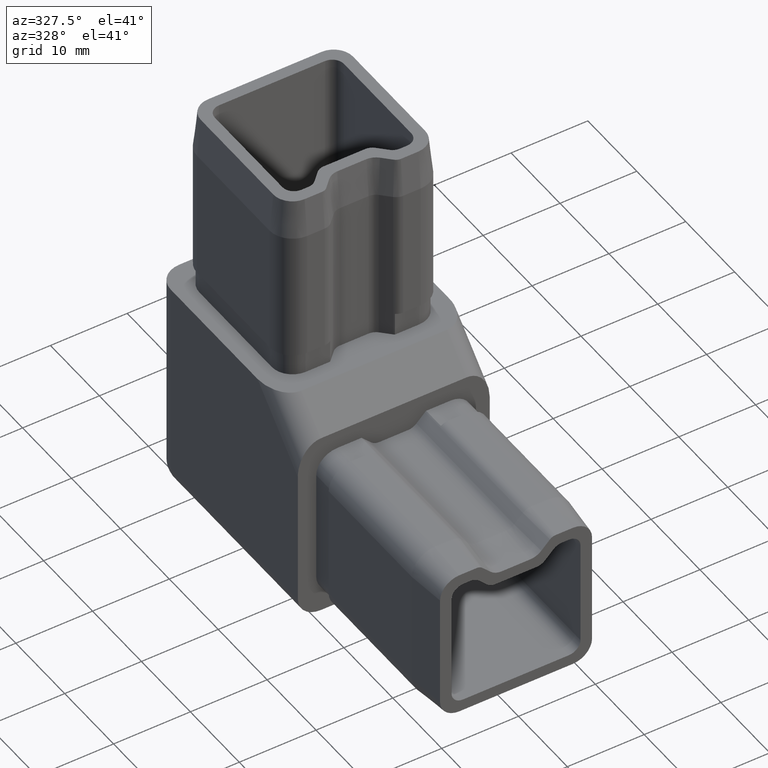
[diagram: clean part render]
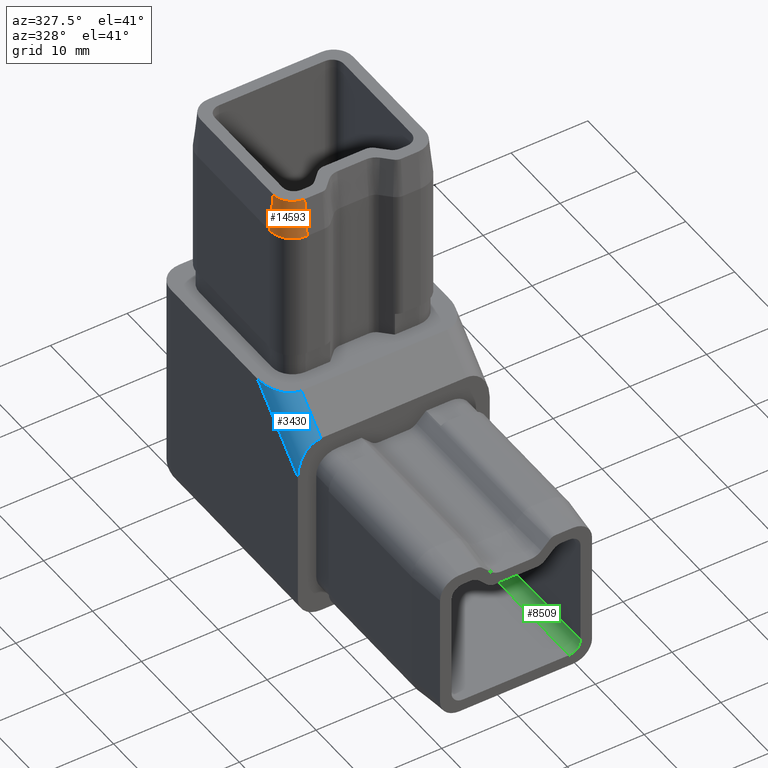
[diagram: same view with three faces highlighted in distinct colors, each labeled with its STEP entity id]
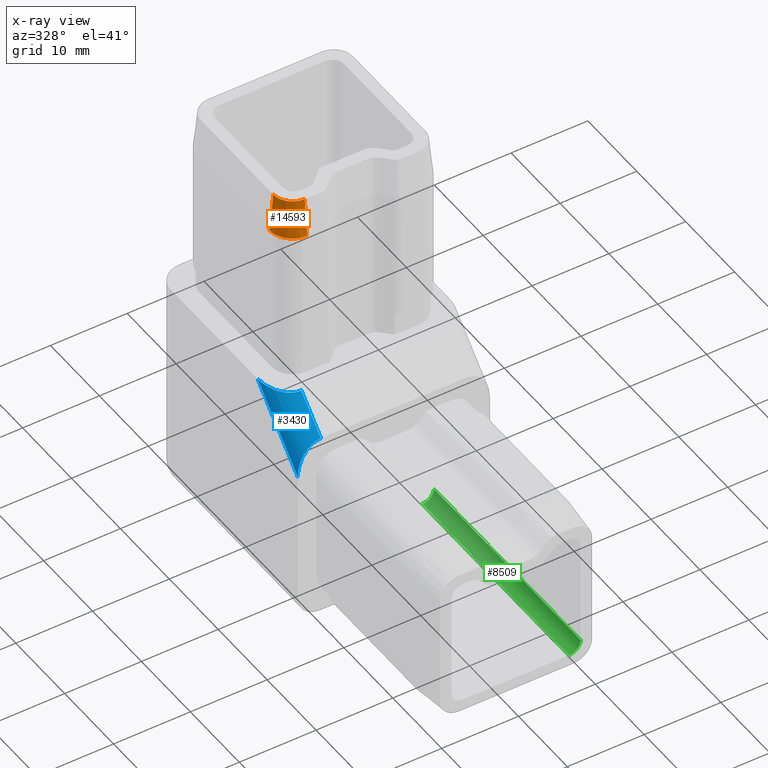
[diagram: x-ray of the same camera — body ghosted, the three highlighted faces saturated]
A machine part, auxiliary view with three faces highlighted in distinct colors.
The next image is the same camera in x-ray (body ghosted, the three faces saturated) — at least one of them is partly hidden behind the body in this view.
Their STEP definitions:

[orange] entity #14593 — the highlighted conical surface has half-angle 5.711 deg.
#24 = VERTEX_POINT ( 'NONE', #14538 ) ;
#80 = ORIENTED_EDGE ( 'NONE', *, *, #8431, .F. ) ;
#134 = ORIENTED_EDGE ( 'NONE', *, *, #9704, .T. ) ;
#420 = CARTESIAN_POINT ( 'NONE',  ( -7.399999999999999500, -7.900000000000016300, 39.50000000000000000 ) ) ;
#670 = DIRECTION ( 'NONE',  ( -1.734723475976807100E-016, -0.09950371902099938700, -0.9950371902099890400 ) ) ;
#702 = EDGE_CURVE ( 'NONE', #8308, #24, #5371, .T. ) ;
#1025 = CARTESIAN_POINT ( 'NONE',  ( -9.900000000000011000, -5.400000000000012800, 39.50000000000000000 ) ) ;
#1292 = DIRECTION ( 'NONE',  ( -1.000000000000000000, 0.0000000000000000000, 0.0000000000000000000 ) ) ;
#1793 = LINE ( 'NONE', #1025, #24279 ) ;
#2605 = ORIENTED_EDGE ( 'NONE', *, *, #702, .F. ) ;
#3595 = CARTESIAN_POINT ( 'NONE',  ( -7.399999999999999500, -7.900000000000016300, 39.50000000000000000 ) ) ;
#5371 = LINE ( 'NONE', #420, #9996 ) ;
#5805 = VERTEX_POINT ( 'NONE', #23120 ) ;
#6315 = VERTEX_POINT ( 'NONE', #21039 ) ;
#6955 = DIRECTION ( 'NONE',  ( -0.09950371902099938700, 1.452852380689753500E-016, -0.9950371902099890400 ) ) ;
#7140 = CARTESIAN_POINT ( 'NONE',  ( -7.400000000000003000, -5.400000000000007500, 39.50000000000000000 ) ) ;
#8308 = VERTEX_POINT ( 'NONE', #3595 ) ;
#8431 = EDGE_CURVE ( 'NONE', #24, #5805, #12269, .T. ) ;
#9672 = DIRECTION ( 'NONE',  ( -0.0000000000000000000, -0.0000000000000000000, -1.000000000000000000 ) ) ;
#9704 = EDGE_CURVE ( 'NONE', #6315, #5805, #1793, .T. ) ;
#9996 = VECTOR ( 'NONE', #670, 1000.000000000000200 ) ;
#12041 = ORIENTED_EDGE ( 'NONE', *, *, #18305, .T. ) ;
#12269 = CIRCLE ( 'NONE', #21026, 3.000000000000010700 ) ;
#13351 = FACE_OUTER_BOUND ( 'NONE', #24248, .T. ) ;
#13546 = CARTESIAN_POINT ( 'NONE',  ( -7.400000000000003000, -5.400000000000007500, 39.50000000000000000 ) ) ;
#14538 = CARTESIAN_POINT ( 'NONE',  ( -7.400000000000001200, -8.400000000000016300, 34.50000000000000000 ) ) ;
#14593 = ADVANCED_FACE ( 'NONE', ( #13351 ), #19526, .T. ) ;
#14611 = AXIS2_PLACEMENT_3D ( 'NONE', #13546, #9672, #15871 ) ;
#15871 = DIRECTION ( 'NONE',  ( -1.000000000000000000, 0.0000000000000000000, 0.0000000000000000000 ) ) ;
#16891 = DIRECTION ( 'NONE',  ( -0.0000000000000000000, -0.0000000000000000000, -1.000000000000000000 ) ) ;
#18305 = EDGE_CURVE ( 'NONE', #8308, #6315, #22292, .T. ) ;
#18966 = AXIS2_PLACEMENT_3D ( 'NONE', #7140, #16891, #1292 ) ;
#19526 = CONICAL_SURFACE ( 'NONE', #14611, 2.500000000000010200, 0.09966865249116216300 ) ;
#21026 = AXIS2_PLACEMENT_3D ( 'NONE', #22003, #23986, #23818 ) ;
#21039 = CARTESIAN_POINT ( 'NONE',  ( -9.900000000000011000, -5.400000000000012800, 39.50000000000000000 ) ) ;
#22003 = CARTESIAN_POINT ( 'NONE',  ( -7.400000000000003000, -5.400000000000007500, 34.50000000000000000 ) ) ;
#22292 = CIRCLE ( 'NONE', #18966, 2.500000000000010200 ) ;
#23120 = CARTESIAN_POINT ( 'NONE',  ( -10.40000000000001100, -5.400000000000011000, 34.50000000000000000 ) ) ;
#23818 = DIRECTION ( 'NONE',  ( -1.000000000000000000, 0.0000000000000000000, 0.0000000000000000000 ) ) ;
#23986 = DIRECTION ( 'NONE',  ( -0.0000000000000000000, -0.0000000000000000000, -1.000000000000000000 ) ) ;
#24248 = EDGE_LOOP ( 'NONE', ( #2605, #12041, #134, #80 ) ) ;
#24279 = VECTOR ( 'NONE', #6955, 1000.000000000000200 ) ;

[blue] entity #3430 — the highlighted cylindrical surface (edge-blend (fillet) strip) has radius 3 mm, axis along (0, -0.7071, -0.7071).
#5 =( BOUNDED_CURVE ( )  B_SPLINE_CURVE ( 3, ( #10167, #22029, #23842, #12039 ),
 .UNSPECIFIED., .F., .T. ) 
 B_SPLINE_CURVE_WITH_KNOTS ( ( 4, 4 ),
 ( 3.141592653589793600, 4.712388980384687900 ),
 .UNSPECIFIED. ) 
 CURVE ( )  GEOMETRIC_REPRESENTATION_ITEM ( )  RATIONAL_B_SPLINE_CURVE ( ( 1.000000000000000000, 0.8047378541243654900, 0.8047378541243654900, 1.000000000000000000 ) ) 
 REPRESENTATION_ITEM ( '' )  );
#1916 = VECTOR ( 'NONE', #19713, 1000.000000000000100 ) ;
#2718 = VERTEX_POINT ( 'NONE', #11256 ) ;
#2782 = EDGE_LOOP ( 'NONE', ( #24687, #17172, #18689, #17738 ) ) ;
#2841 = EDGE_CURVE ( 'NONE', #11148, #9052, #4066, .T. ) ;
#2921 = CARTESIAN_POINT ( 'NONE',  ( -9.499999999999998200, -10.50000000000002100, 14.50000000000000000 ) ) ;
#3291 =( BOUNDED_CURVE ( )  B_SPLINE_CURVE ( 3, ( #8847, #14706, #20773, #2921 ),
 .UNSPECIFIED., .F., .F. ) 
 B_SPLINE_CURVE_WITH_KNOTS ( ( 4, 4 ),
 ( 4.712388980384688800, 6.283185307179586200 ),
 .UNSPECIFIED. ) 
 CURVE ( )  GEOMETRIC_REPRESENTATION_ITEM ( )  RATIONAL_B_SPLINE_CURVE ( ( 1.000000000000000000, 0.8047378541243648300, 0.8047378541243648300, 1.000000000000000000 ) ) 
 REPRESENTATION_ITEM ( '' )  );
#3430 = ADVANCED_FACE ( 'NONE', ( #17922 ), #9897, .T. ) ;
#4066 = LINE ( 'NONE', #13747, #1916 ) ;
#4138 = EDGE_CURVE ( 'NONE', #13731, #11148, #3291, .T. ) ;
#4817 = DIRECTION ( 'NONE',  ( -8.459549885149632900E-017, 0.7071067811865461300, 0.7071067811865489100 ) ) ;
#7615 = CARTESIAN_POINT ( 'NONE',  ( -9.499999999999998200, -14.50000000000000200, 10.50000000000000400 ) ) ;
#8847 = CARTESIAN_POINT ( 'NONE',  ( -12.49999999999999800, -6.257359312880746300, 14.50000000000000000 ) ) ;
#9052 = VERTEX_POINT ( 'NONE', #7615 ) ;
#9513 = CARTESIAN_POINT ( 'NONE',  ( -12.49999999999999800, -6.257359312880746300, 14.50000000000000000 ) ) ;
#9732 = CARTESIAN_POINT ( 'NONE',  ( -9.499999999999998200, -10.50000000000002100, 14.50000000000000000 ) ) ;
#9786 = VECTOR ( 'NONE', #4817, 1000.000000000000100 ) ;
#9897 = CYLINDRICAL_SURFACE ( 'NONE', #15599, 3.000000000000000400 ) ;
#10167 = CARTESIAN_POINT ( 'NONE',  ( -9.499999999999998200, -14.50000000000000200, 10.50000000000000400 ) ) ;
#10553 = DIRECTION ( 'NONE',  ( 0.0000000000000000000, 0.7071067811865490200, -0.7071067811865460200 ) ) ;
#11148 = VERTEX_POINT ( 'NONE', #9732 ) ;
#11256 = CARTESIAN_POINT ( 'NONE',  ( -12.49999999999999600, -14.50000000000000200, 6.257359312880720600 ) ) ;
#12039 = CARTESIAN_POINT ( 'NONE',  ( -12.49999999999999600, -14.50000000000000200, 6.257359312880720600 ) ) ;
#12724 = CARTESIAN_POINT ( 'NONE',  ( -12.49999999999999600, -8.378679656440372300, 12.37867965644036900 ) ) ;
#12970 = EDGE_CURVE ( 'NONE', #9052, #2718, #5, .T. ) ;
#13731 = VERTEX_POINT ( 'NONE', #9513 ) ;
#13747 = CARTESIAN_POINT ( 'NONE',  ( -9.499999999999998200, -14.50000000000000400, 10.50000000000000000 ) ) ;
#14706 = CARTESIAN_POINT ( 'NONE',  ( -12.49999999999999800, -8.742640687119312300, 14.50000000000000200 ) ) ;
#15599 = AXIS2_PLACEMENT_3D ( 'NONE', #22878, #22355, #10553 ) ;
#17172 = ORIENTED_EDGE ( 'NONE', *, *, #2841, .F. ) ;
#17738 = ORIENTED_EDGE ( 'NONE', *, *, #20414, .F. ) ;
#17922 = FACE_OUTER_BOUND ( 'NONE', #2782, .T. ) ;
#18689 = ORIENTED_EDGE ( 'NONE', *, *, #4138, .F. ) ;
#19713 = DIRECTION ( 'NONE',  ( 8.459549885149634100E-017, -0.7071067811865461300, -0.7071067811865489100 ) ) ;
#20414 = EDGE_CURVE ( 'NONE', #2718, #13731, #22102, .T. ) ;
#20773 = CARTESIAN_POINT ( 'NONE',  ( -11.25735931288071800, -10.50000000000002800, 14.50000000000000200 ) ) ;
#22029 = CARTESIAN_POINT ( 'NONE',  ( -11.25735931288070700, -14.50000000000000000, 10.50000000000000900 ) ) ;
#22102 = LINE ( 'NONE', #12724, #9786 ) ;
#22355 = DIRECTION ( 'NONE',  ( 8.459549885149634100E-017, -0.7071067811865462400, -0.7071067811865490200 ) ) ;
#22878 = CARTESIAN_POINT ( 'NONE',  ( -9.500000000000000000, 4.121320343559585100, 24.87867965644037600 ) ) ;
#23842 = CARTESIAN_POINT ( 'NONE',  ( -12.49999999999999300, -14.50000000000000000, 8.742640687119292800 ) ) ;
#24687 = ORIENTED_EDGE ( 'NONE', *, *, #12970, .F. ) ;

[green] entity #8509 — the highlighted cylindrical surface (edge-blend (fillet) strip) has radius 1.5 mm, axis along (0, -1, 0).
#675 = ORIENTED_EDGE ( 'NONE', *, *, #13212, .T. ) ;
#1491 = DIRECTION ( 'NONE',  ( 1.196361017915039200E-016, -1.000000000000000000, -0.0000000000000000000 ) ) ;
#2810 = DIRECTION ( 'NONE',  ( 1.000000000000000000, 1.196361017915039500E-016, 0.0000000000000000000 ) ) ;
#3212 = VERTEX_POINT ( 'NONE', #21619 ) ;
#3542 = CARTESIAN_POINT ( 'NONE',  ( 8.400000000000007500, -39.50000000000000000, -8.900000000000002100 ) ) ;
#3897 = CARTESIAN_POINT ( 'NONE',  ( 8.400000000000003900, -9.499999999999998200, -8.900000000000002100 ) ) ;
#4194 = DIRECTION ( 'NONE',  ( -0.0000000000000000000, 1.000000000000000000, 4.440892098500625200E-016 ) ) ;
#8378 = CARTESIAN_POINT ( 'NONE',  ( 6.900000000000007500, -39.49999999999999300, -8.900000000000002100 ) ) ;
#8461 = VERTEX_POINT ( 'NONE', #15564 ) ;
#8509 = ADVANCED_FACE ( 'NONE', ( #16613 ), #20016, .F. ) ;
#10044 = EDGE_LOOP ( 'NONE', ( #15386, #20951, #675, #24201 ) ) ;
#10128 = VERTEX_POINT ( 'NONE', #3897 ) ;
#10461 = DIRECTION ( 'NONE',  ( 0.0000000000000000000, 1.000000000000000000, 4.440892098500625200E-016 ) ) ;
#10632 = DIRECTION ( 'NONE',  ( 1.196361017915039200E-016, -1.000000000000000000, 0.0000000000000000000 ) ) ;
#10950 = DIRECTION ( 'NONE',  ( -1.196361017915039200E-016, 1.000000000000000000, -0.0000000000000000000 ) ) ;
#11480 = VECTOR ( 'NONE', #10950, 1000.000000000000000 ) ;
#11672 = VERTEX_POINT ( 'NONE', #23630 ) ;
#12447 = LINE ( 'NONE', #3542, #16171 ) ;
#13212 = EDGE_CURVE ( 'NONE', #10128, #11672, #24304, .T. ) ;
#13246 = EDGE_CURVE ( 'NONE', #3212, #8461, #22162, .T. ) ;
#15386 = ORIENTED_EDGE ( 'NONE', *, *, #13246, .F. ) ;
#15510 = EDGE_CURVE ( 'NONE', #8461, #11672, #21956, .T. ) ;
#15564 = CARTESIAN_POINT ( 'NONE',  ( 6.900000000000008300, -39.50000000000000000, -10.40000000000001500 ) ) ;
#16171 = VECTOR ( 'NONE', #1491, 1000.000000000000000 ) ;
#16411 = CARTESIAN_POINT ( 'NONE',  ( 6.900000000000003000, 8.254891023613775100E-016, -8.900000000000002100 ) ) ;
#16613 = FACE_OUTER_BOUND ( 'NONE', #10044, .T. ) ;
#19878 = DIRECTION ( 'NONE',  ( 0.0000000000000000000, 0.0000000000000000000, -1.000000000000000000 ) ) ;
#20016 = CYLINDRICAL_SURFACE ( 'NONE', #20060, 1.499999999999999600 ) ;
#20060 = AXIS2_PLACEMENT_3D ( 'NONE', #16411, #10632, #2810 ) ;
#20123 = DIRECTION ( 'NONE',  ( 0.0000000000000000000, 0.0000000000000000000, 1.000000000000000000 ) ) ;
#20951 = ORIENTED_EDGE ( 'NONE', *, *, #22603, .F. ) ;
#21044 = CARTESIAN_POINT ( 'NONE',  ( 6.900000000000003900, -9.500000000000001800, -10.40000000000000200 ) ) ;
#21407 = AXIS2_PLACEMENT_3D ( 'NONE', #23895, #4194, #19878 ) ;
#21619 = CARTESIAN_POINT ( 'NONE',  ( 8.400000000000005700, -39.50000000000000000, -8.900000000000002100 ) ) ;
#21956 = LINE ( 'NONE', #21044, #11480 ) ;
#22162 = CIRCLE ( 'NONE', #22215, 1.499999999999999600 ) ;
#22215 = AXIS2_PLACEMENT_3D ( 'NONE', #8378, #10461, #20123 ) ;
#22603 = EDGE_CURVE ( 'NONE', #10128, #3212, #12447, .T. ) ;
#23630 = CARTESIAN_POINT ( 'NONE',  ( 6.900000000000003900, -9.499999999999998200, -10.40000000000000200 ) ) ;
#23895 = CARTESIAN_POINT ( 'NONE',  ( 6.900000000000003900, -9.499999999999998200, -8.900000000000002100 ) ) ;
#24201 = ORIENTED_EDGE ( 'NONE', *, *, #15510, .F. ) ;
#24304 = CIRCLE ( 'NONE', #21407, 1.499999999999999600 ) ;